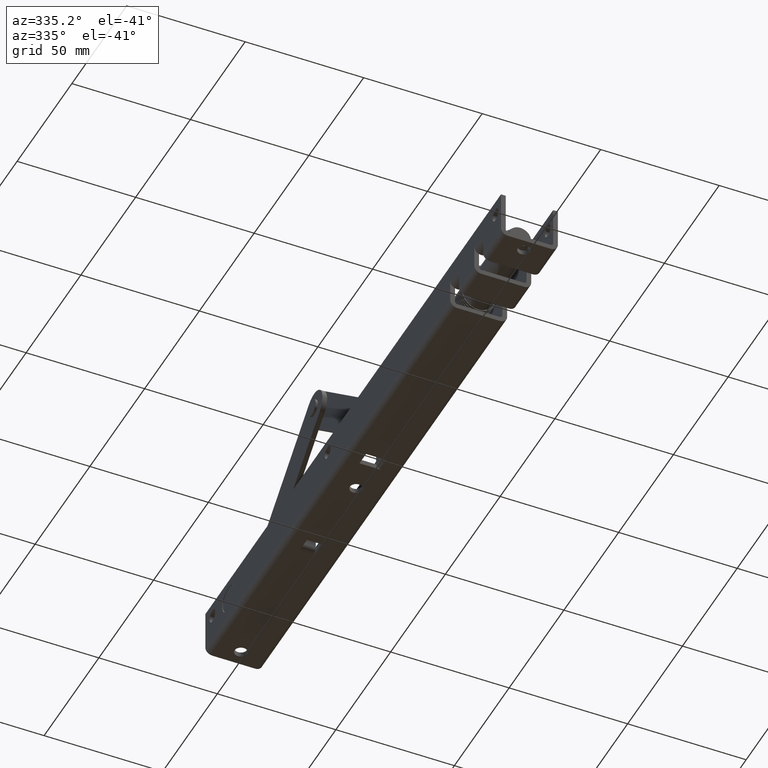
[diagram: clean part render]
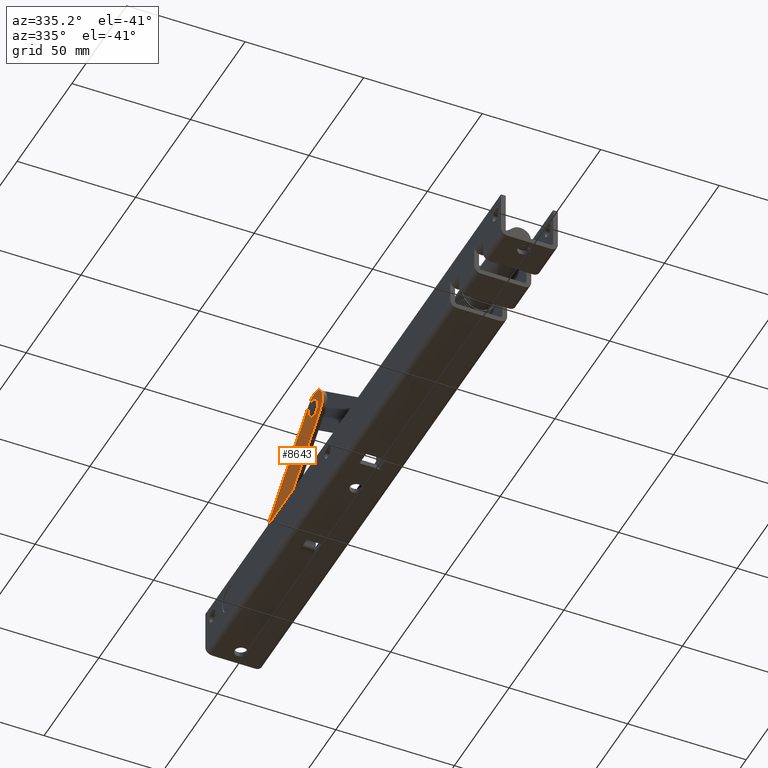
[diagram: same view with one face highlighted and labeled with its STEP entity id]
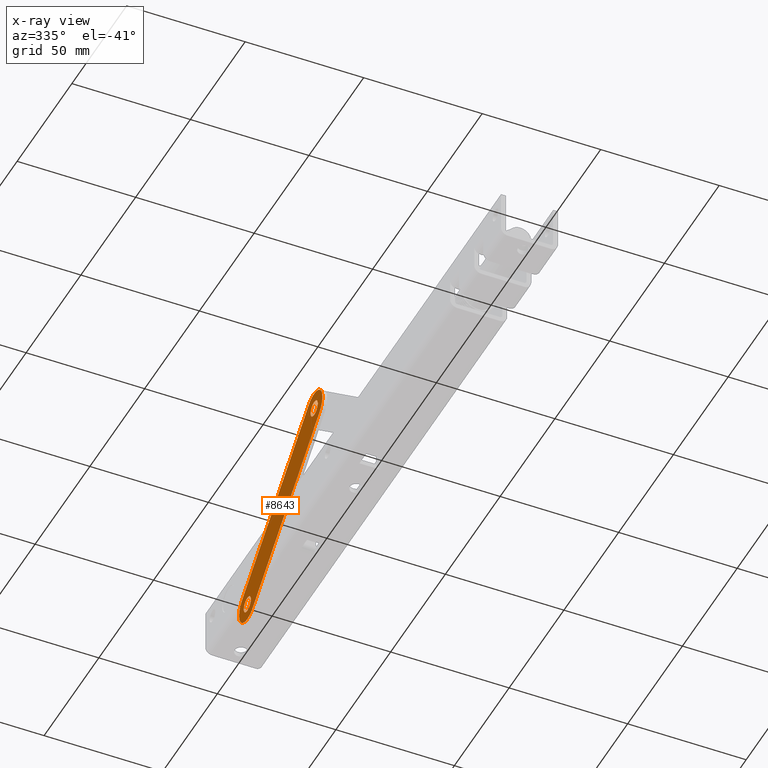
[diagram: x-ray of the same camera — body ghosted, the highlighted face saturated]
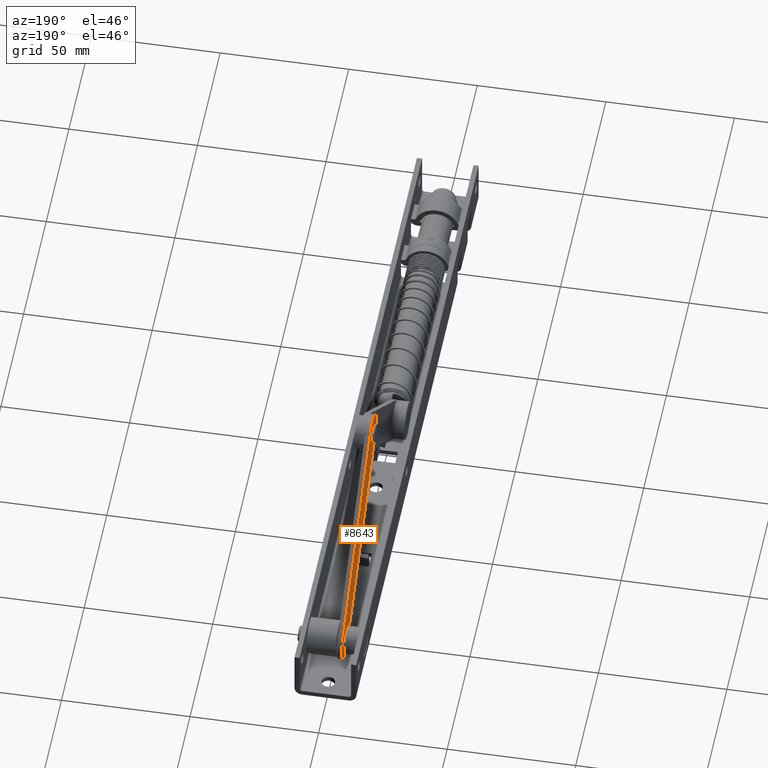
[diagram: same view with one face highlighted and labeled with its STEP entity id]
A machine part, auxiliary view. The second image highlights one B-rep face of the part: STEP entity #8643.
The next image is the same camera in x-ray: the body ghosted, the highlighted face saturated — about 0% of this face is hidden behind the body in this view.
A second angle (auxiliary view) of the same face is appended — the face is thin or edge-on in the first view.
In plain terms, the highlighted planar face has unit normal (-1, 0, 0).
Its self-contained STEP definition (entity closure, byte-faithful):
#68 = DIRECTION ( 'NONE',  ( 5.546678239835238381E-31, 1.000000000000000000, 6.162975822039025548E-32 ) ) ;
#96 = CARTESIAN_POINT ( 'NONE',  ( 3.055289307401387756E-13, 1.000000000000000000, -43.10000000000121645 ) ) ;
#152 = CARTESIAN_POINT ( 'NONE',  ( 8.326672684688674053E-14, 1.000000000000024203, 39.85000000000031406 ) ) ;
#200 = CARTESIAN_POINT ( 'NONE',  ( 4.440892098500626162E-13, 1.000000000000000000, -39.85000000000120934 ) ) ;
#217 = CARTESIAN_POINT ( 'NONE',  ( 8.326672684688674053E-14, 1.000000000000024203, 39.85000000000031406 ) ) ;
#262 = VECTOR ( 'NONE', #3620, 1000.000000000000000 ) ;
#483 = VERTEX_POINT ( 'NONE', #12997 ) ;
#863 = DIRECTION ( 'NONE',  ( 5.551115123125875147E-17, 0.000000000000000000, 1.000000000000000000 ) ) ;
#1035 = ORIENTED_EDGE ( 'NONE', *, *, #17390, .F. ) ;
#1335 = DIRECTION ( 'NONE',  ( 5.551115123125711212E-17, 0.000000000000000000, 1.000000000000000000 ) ) ;
#1456 = FACE_BOUND ( 'NONE', #2698, .T. ) ;
#1924 = DIRECTION ( 'NONE',  ( 5.551115123125669303E-17, -6.162975822039028832E-32, 1.000000000000000000 ) ) ;
#2108 = LINE ( 'NONE', #3545, #262 ) ;
#2173 = EDGE_LOOP ( 'NONE', ( #8449, #8308, #18382, #12729, #10076 ) ) ;
#2602 = CIRCLE ( 'NONE', #22186, 7.500000000000158984 ) ;
#2698 = EDGE_LOOP ( 'NONE', ( #6764, #20768 ) ) ;
#2708 = CARTESIAN_POINT ( 'NONE',  ( 4.440892098500626162E-13, 1.000000000000000000, -39.85000000000120934 ) ) ;
#2765 = DIRECTION ( 'NONE',  ( 5.546678239835239257E-31, 1.000000000000000000, 1.232595164407830946E-32 ) ) ;
#2949 = EDGE_CURVE ( 'NONE', #483, #3006, #2108, .T. ) ;
#3006 = VERTEX_POINT ( 'NONE', #6964 ) ;
#3394 = CIRCLE ( 'NONE', #22250, 3.250000000000072387 ) ;
#3525 = CARTESIAN_POINT ( 'NONE',  ( 8.344713808838832847E-14, 1.000000000000024203, 43.10000000000038511 ) ) ;
#3545 = CARTESIAN_POINT ( 'NONE',  ( 7.500000000000422773, 1.000000000000000000, -39.85000000000113829 ) ) ;
#3580 = VERTEX_POINT ( 'NONE', #13631 ) ;
#3620 = DIRECTION ( 'NONE',  ( -5.551115123125669303E-17, 6.162975822039028832E-32, -1.000000000000000000 ) ) ;
#3730 = EDGE_CURVE ( 'NONE', #19172, #15947, #3996, .T. ) ;
#3996 = LINE ( 'NONE', #17929, #9401 ) ;
#4366 = AXIS2_PLACEMENT_3D ( 'NONE', #217, #10468, #1335 ) ;
#4506 = CARTESIAN_POINT ( 'NONE',  ( -7.499999999999847233, 0.9999999999999878986, -39.85000000000137987 ) ) ;
#5370 = EDGE_CURVE ( 'NONE', #5878, #3580, #3394, .T. ) ;
#5470 = VERTEX_POINT ( 'NONE', #21769 ) ;
#5878 = VERTEX_POINT ( 'NONE', #3525 ) ;
#5937 = DIRECTION ( 'NONE',  ( 5.551115123124858256E-17, 0.000000000000000000, 1.000000000000000000 ) ) ;
#6522 = VERTEX_POINT ( 'NONE', #8998 ) ;
#6764 = ORIENTED_EDGE ( 'NONE', *, *, #8401, .F. ) ;
#6964 = CARTESIAN_POINT ( 'NONE',  ( 7.500000000000422773, 1.000000000000000000, -39.85000000000113829 ) ) ;
#7185 = CIRCLE ( 'NONE', #9764, 3.250000000000072387 ) ;
#7699 = AXIS2_PLACEMENT_3D ( 'NONE', #200, #68, #1924 ) ;
#8016 = DIRECTION ( 'NONE',  ( 5.551115123125875147E-17, 0.000000000000000000, 1.000000000000000000 ) ) ;
#8308 = ORIENTED_EDGE ( 'NONE', *, *, #14441, .T. ) ;
#8401 = EDGE_CURVE ( 'NONE', #6522, #10064, #17925, .T. ) ;
#8449 = ORIENTED_EDGE ( 'NONE', *, *, #17263, .T. ) ;
#8643 = ADVANCED_FACE ( 'NONE', ( #10361, #1456, #9021 ), #13915, .T. ) ;
#8998 = CARTESIAN_POINT ( 'NONE',  ( 4.442696210915641536E-13, 1.000000000000000000, -36.60000000000113829 ) ) ;
#9021 = FACE_OUTER_BOUND ( 'NONE', #2173, .T. ) ;
#9171 = DIRECTION ( 'NONE',  ( 5.546678239835239257E-31, 1.000000000000000000, 1.232595164407830946E-32 ) ) ;
#9401 = VECTOR ( 'NONE', #12802, 1000.000000000000000 ) ;
#9764 = AXIS2_PLACEMENT_3D ( 'NONE', #19483, #9171, #5937 ) ;
#10064 = VERTEX_POINT ( 'NONE', #96 ) ;
#10076 = ORIENTED_EDGE ( 'NONE', *, *, #2949, .T. ) ;
#10361 = FACE_BOUND ( 'NONE', #14853, .T. ) ;
#10403 = DIRECTION ( 'NONE',  ( 5.551115123125616302E-17, 0.000000000000000000, 1.000000000000000000 ) ) ;
#10468 = DIRECTION ( 'NONE',  ( 5.546678239835239257E-31, 1.000000000000000000, 1.232595164407830946E-32 ) ) ;
#10562 = EDGE_CURVE ( 'NONE', #15947, #483, #11999, .T. ) ;
#11179 = CARTESIAN_POINT ( 'NONE',  ( 4.440892098500626162E-13, 1.000000000000000000, -39.85000000000120934 ) ) ;
#11235 = DIRECTION ( 'NONE',  ( 5.551115123125616302E-17, 0.000000000000000000, 1.000000000000000000 ) ) ;
#11474 = CIRCLE ( 'NONE', #15829, 7.500000000000158984 ) ;
#11596 = CARTESIAN_POINT ( 'NONE',  ( 4.440892098500626162E-13, 1.000000000000000000, -39.85000000000120934 ) ) ;
#11999 = CIRCLE ( 'NONE', #4366, 7.500000000000158984 ) ;
#12729 = ORIENTED_EDGE ( 'NONE', *, *, #10562, .T. ) ;
#12802 = DIRECTION ( 'NONE',  ( 5.551115123125669303E-17, -6.162975822039028832E-32, 1.000000000000000000 ) ) ;
#12997 = CARTESIAN_POINT ( 'NONE',  ( 7.500000000000242473, 1.000000000000000000, 39.85000000000032117 ) ) ;
#13631 = CARTESIAN_POINT ( 'NONE',  ( 8.348432581510804814E-14, 1.000000000000024203, 36.60000000000031406 ) ) ;
#13915 = PLANE ( 'NONE',  #7699 ) ;
#14441 = EDGE_CURVE ( 'NONE', #5470, #19172, #2602, .T. ) ;
#14688 = AXIS2_PLACEMENT_3D ( 'NONE', #152, #17257, #10403 ) ;
#14853 = EDGE_LOOP ( 'NONE', ( #17270, #1035 ) ) ;
#15829 = AXIS2_PLACEMENT_3D ( 'NONE', #2708, #21552, #8016 ) ;
#15947 = VERTEX_POINT ( 'NONE', #18063 ) ;
#16437 = EDGE_CURVE ( 'NONE', #10064, #6522, #7185, .T. ) ;
#16578 = DIRECTION ( 'NONE',  ( 5.551115123124858256E-17, 0.000000000000000000, 1.000000000000000000 ) ) ;
#17257 = DIRECTION ( 'NONE',  ( 5.546678239835239257E-31, 1.000000000000000000, 1.232595164407830946E-32 ) ) ;
#17263 = EDGE_CURVE ( 'NONE', #3006, #5470, #11474, .T. ) ;
#17270 = ORIENTED_EDGE ( 'NONE', *, *, #5370, .F. ) ;
#17390 = EDGE_CURVE ( 'NONE', #3580, #5878, #21700, .T. ) ;
#17882 = CARTESIAN_POINT ( 'NONE',  ( 8.326672684688674053E-14, 1.000000000000024203, 39.85000000000031406 ) ) ;
#17925 = CIRCLE ( 'NONE', #19660, 3.250000000000072387 ) ;
#17929 = CARTESIAN_POINT ( 'NONE',  ( -7.499999999999847233, 0.9999999999999878986, -39.85000000000137987 ) ) ;
#18063 = CARTESIAN_POINT ( 'NONE',  ( -7.499999999999951150, 1.000000000000012212, 39.85000000000037090 ) ) ;
#18382 = ORIENTED_EDGE ( 'NONE', *, *, #3730, .T. ) ;
#18408 = DIRECTION ( 'NONE',  ( 5.546678239835239257E-31, 1.000000000000000000, 1.232595164407830946E-32 ) ) ;
#19172 = VERTEX_POINT ( 'NONE', #4506 ) ;
#19483 = CARTESIAN_POINT ( 'NONE',  ( 4.440892098500626162E-13, 1.000000000000000000, -39.85000000000120934 ) ) ;
#19660 = AXIS2_PLACEMENT_3D ( 'NONE', #11596, #2765, #16578 ) ;
#20047 = DIRECTION ( 'NONE',  ( 5.546678239835239257E-31, 1.000000000000000000, 1.232595164407830946E-32 ) ) ;
#20768 = ORIENTED_EDGE ( 'NONE', *, *, #16437, .F. ) ;
#21552 = DIRECTION ( 'NONE',  ( 5.546678239835239257E-31, 1.000000000000000000, 1.232595164407830946E-32 ) ) ;
#21700 = CIRCLE ( 'NONE', #14688, 3.250000000000072387 ) ;
#21769 = CARTESIAN_POINT ( 'NONE',  ( 4.436728762158281825E-13, 1.000000000000000000, -47.35000000000121645 ) ) ;
#22186 = AXIS2_PLACEMENT_3D ( 'NONE', #11179, #18408, #863 ) ;
#22250 = AXIS2_PLACEMENT_3D ( 'NONE', #17882, #20047, #11235 ) ;